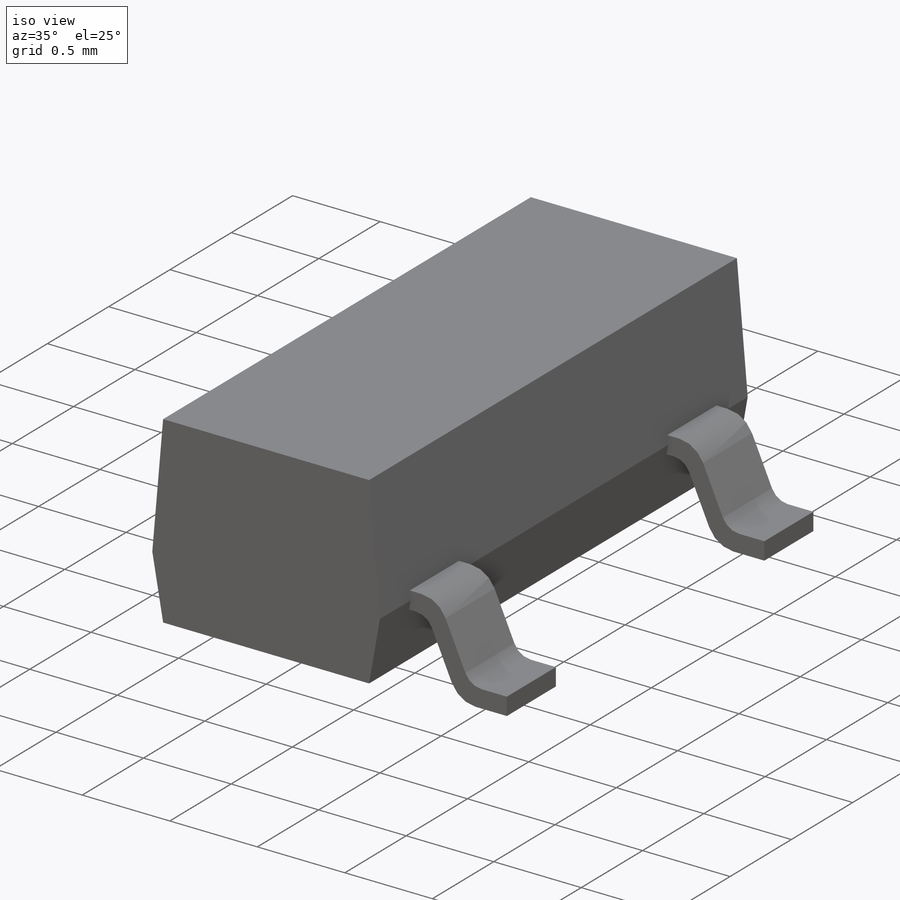
[diagram: iso view]
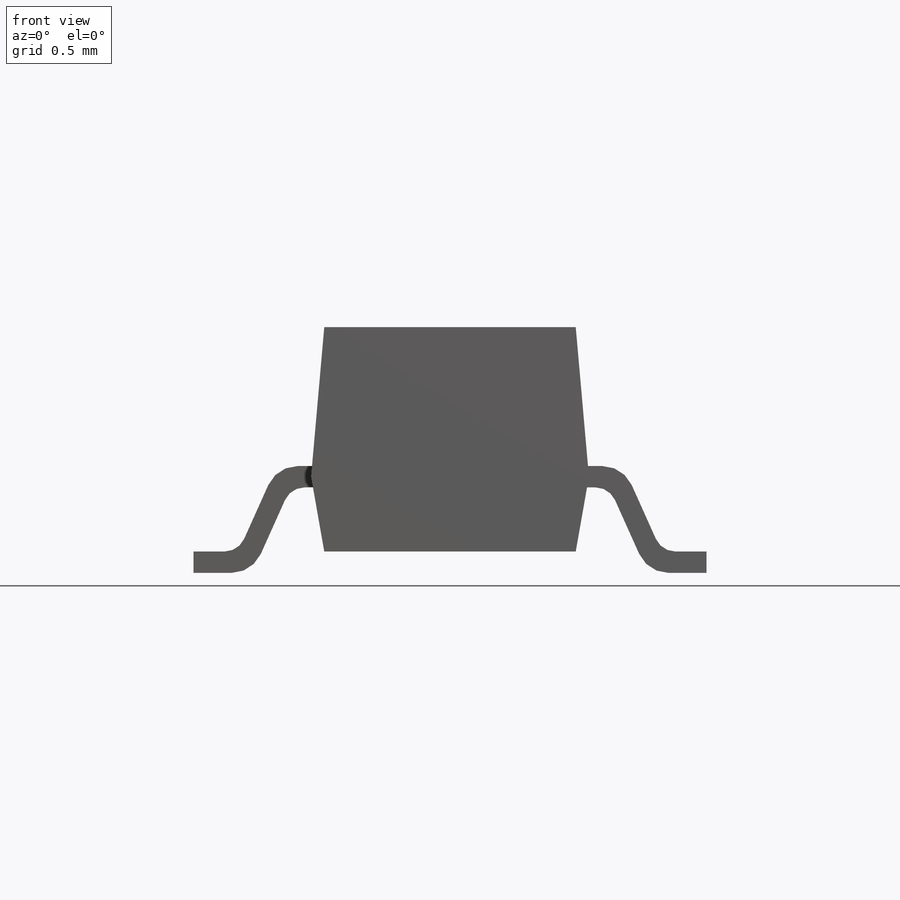
[diagram: front view]
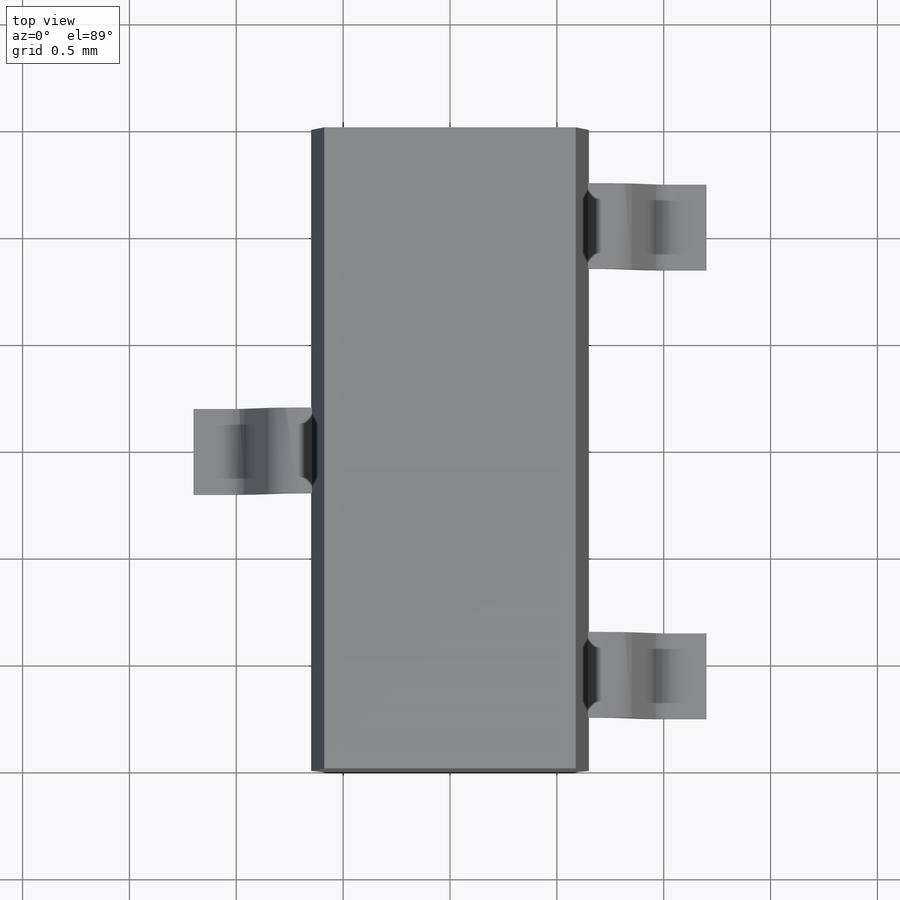
[diagram: top view]
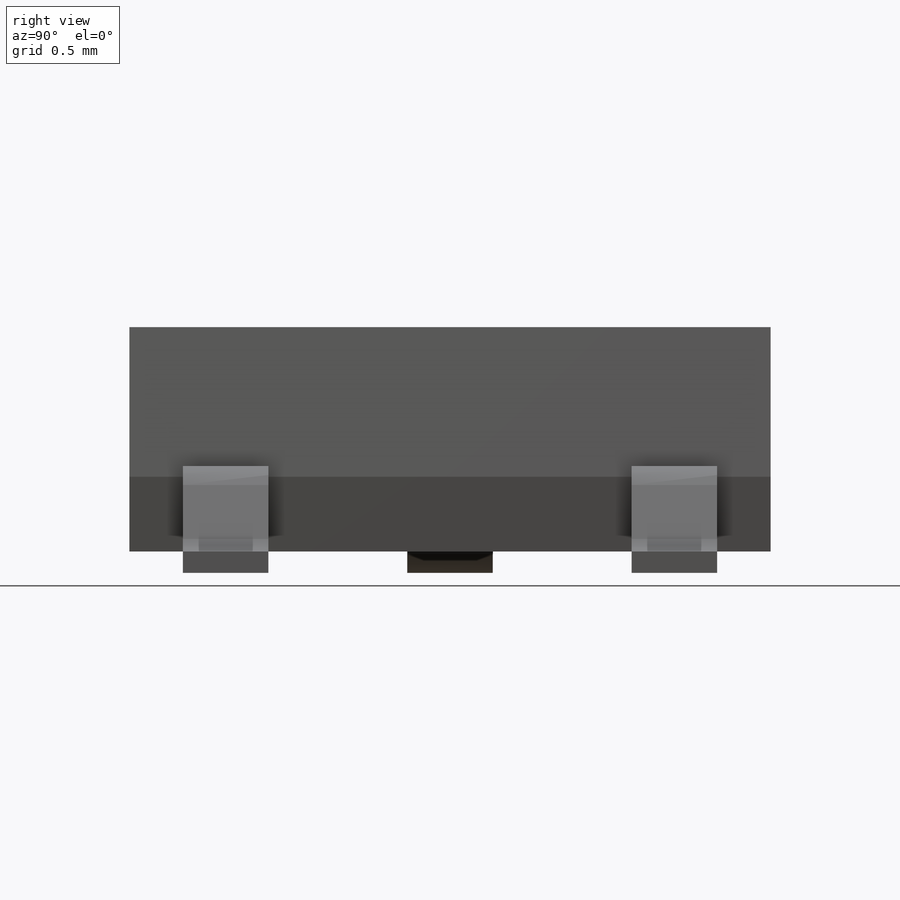
[diagram: right view]
SOLIDWORKS PART (.sldprt)
format: sldprt  version: not decoded by parser v0  size: 775,168 bytes
history: native  units: mm
features: sketch x5, extrude x4, plane x2, material x1, fillet x1, cut_extrude x1 (+12 scaffold rows collapsed)
feature tree (26):
  scaffold x12  (default folders/planes/origin — collapsed)
  material  "Material <not specified>"
  sketch  "Sketch1"  dims[c1.D1=1.3mm c1.D2=~4.291667mm c2.D2=10.0deg c2.D3=1.35mm c2.D4=1.05mm c2.D5=0.36mm c2.D6=2.4mm c3.D5=0.36mm c4.D5=95.0deg c4.D6=~0.361375mm c5.D6=89.0deg c5.D7=2.4mm c5.D8=0.36mm c5.D3=0.7mm]
  extrude  "Extrude1"  Depth=3mm
  plane  "Plane1"  Offset=1.05mm
  sketch  "Sketch2"  dims[c1.D5=0.3mm c1.D6=0.052mm c1.D8=0.2mm c1.D1=0.1mm c1.D4=0.2mm c1.D7=0.1mm c2.D8=0.15mm c2.D9=0.1mm c2.D10=0.15mm c2.D2=1.4mm c2.D3=1.0mm c2.D4=1.4mm c2.D7=5.7mm c2.D1=0.25mm c3.D2=5.3mm c3.D3=0.25mm c3.D4=~2.053473mm c4.D4=~2.864496deg c5.D4=0.25mm c5.D5=3.7mm c5.D6=7.0mm c5.D7=0.96mm c5.D1=0.2mm c6.D6=0.2mm c6.D9=0.2mm c6.D2=~2.990481mm c6.D3=~0.390481mm c7.D2=0.1mm c7.D3=0.5mm c7.D4=5.3mm c7.D5=7.0mm c7.D8=5.3mm c7.D10=0.15mm c7.D1=0.1mm c8.D2=0.1mm c8.D3=2.4mm c8.D4=0.275mm c8.D5=0.1mm c8.D6=0.1mm c8.D7=0.15mm c8.D11=0.2mm c8.D1=0.3mm]
  plane  "Plane2"  Offset=1.05mm
  extrude  "Extrude2"  Depth=0.4mm
  sketch  "Sketch12"
  extrude  "Extrude5"  Depth=0.4mm
  sketch  "Sketch13"
  extrude  "Extrude6"  Depth=0.4mm
  fillet  "Fillet2"  Radius=0.1mm
  sketch  "Sketch14"
  cut_extrude  "Cut-Extrude1"  Depth=0.01mm
decode coverage: 8 of 11 modeling features carry decoded parameters
note: ~ marks probable driven/reference dimensions
note: suppression state not decoded; provenance and decode notes live in map.json
